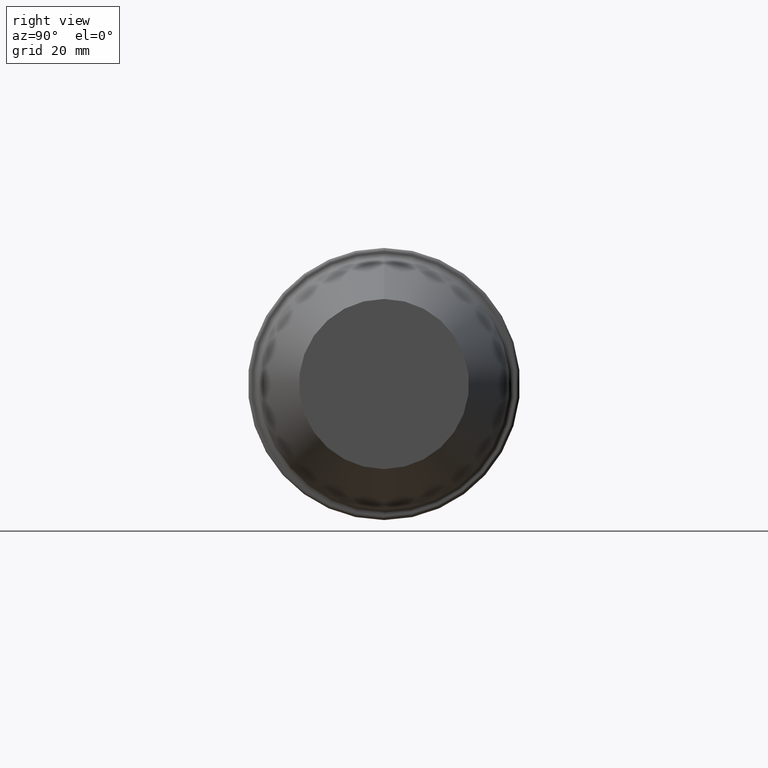
[diagram: clean part render]
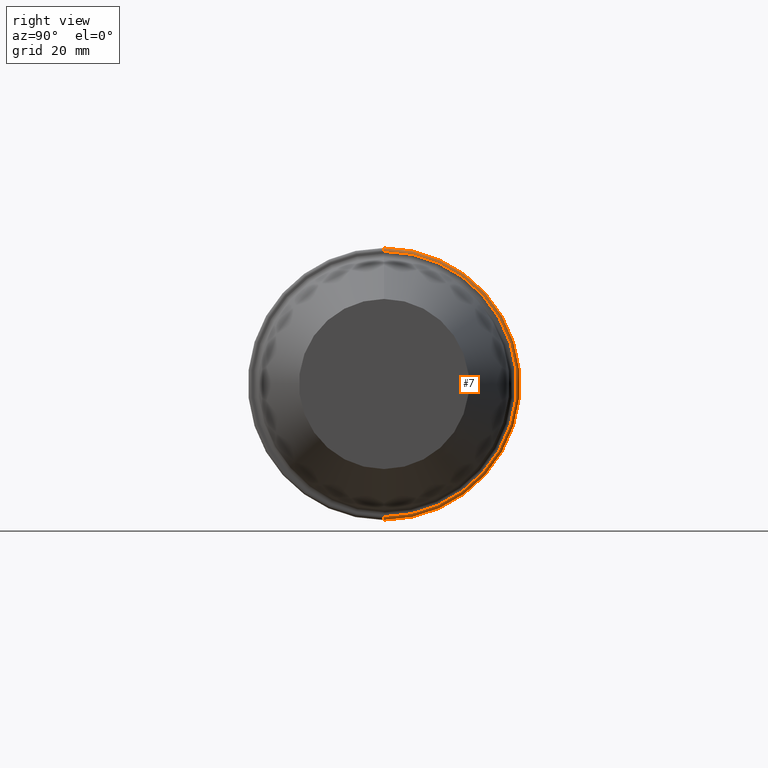
[diagram: same view with one face highlighted and labeled with its STEP entity id]
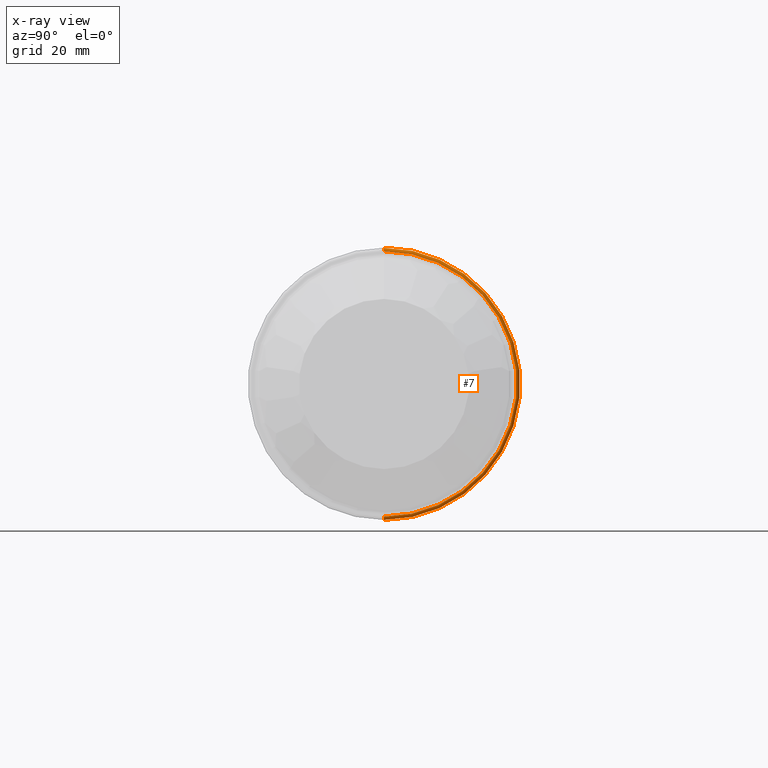
[diagram: x-ray of the same camera — body ghosted, the highlighted face saturated]
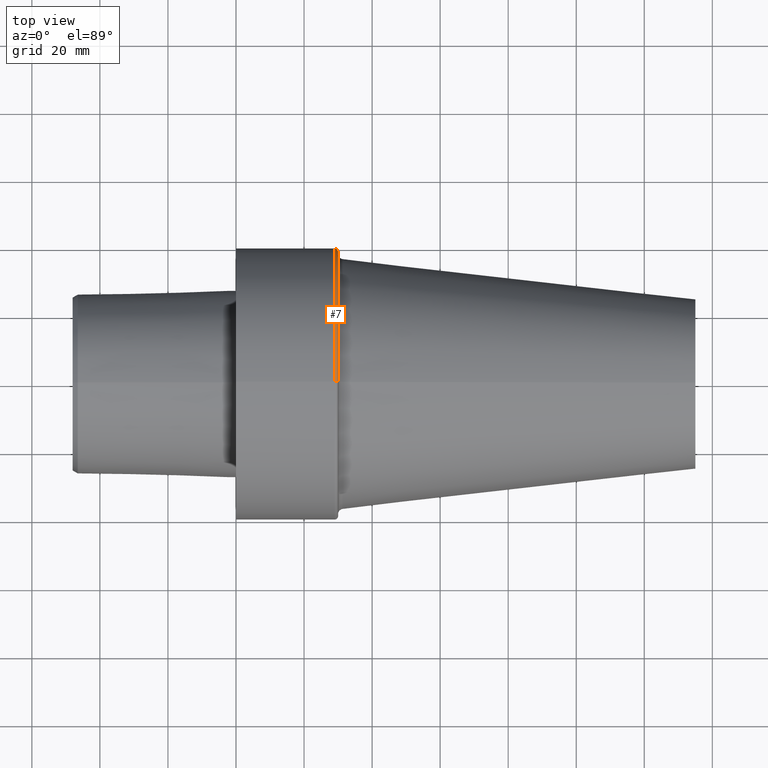
[diagram: same view with one face highlighted and labeled with its STEP entity id]
A machine part, right view. The second image highlights one B-rep face of the part: STEP entity #7.
The next image is the same camera in x-ray: the body ghosted, the highlighted face saturated — about 0% of this face is hidden behind the body in this view.
A second angle (top view) of the same face is appended — the face is thin or edge-on in the first view.
In plain terms, the highlighted toroidal blend (fillet) surface has major radius 38.9925 mm and minor (blend) radius 1 mm.
Its self-contained STEP definition (entity closure, byte-faithful):
#7 = ADVANCED_FACE ( 'NONE', ( #95 ), #18, .T. ) ;
#11 = AXIS2_PLACEMENT_3D ( 'NONE', #84, #246, #418 ) ;
#18 = TOROIDAL_SURFACE ( 'NONE', #11, 38.99249996022764719, 0.9999999989799999156 ) ;
#19 = ORIENTED_EDGE ( 'NONE', *, *, #505, .F. ) ;
#25 = DIRECTION ( 'NONE',  ( 0.000000000000000000, 0.000000000000000000, 1.000000000000000000 ) ) ;
#43 = CARTESIAN_POINT ( 'NONE',  ( 29.99999996940000102, 4.836436366599519633E-15, -38.99249996022764719 ) ) ;
#62 = DIRECTION ( 'NONE',  ( 0.000000000000000000, 0.000000000000000000, 1.000000000000000000 ) ) ;
#76 = CIRCLE ( 'NONE', #386, 0.9999999989799973621 ) ;
#84 = CARTESIAN_POINT ( 'NONE',  ( 28.99999997041999933, 0.000000000000000000, 0.000000000000000000 ) ) ;
#95 = FACE_OUTER_BOUND ( 'NONE', #255, .T. ) ;
#112 = AXIS2_PLACEMENT_3D ( 'NONE', #234, #309, #25 ) ;
#119 = AXIS2_PLACEMENT_3D ( 'NONE', #191, #322, #62 ) ;
#145 = AXIS2_PLACEMENT_3D ( 'NONE', #314, #278, #488 ) ;
#182 = EDGE_CURVE ( 'NONE', #526, #440, #376, .T. ) ;
#191 = CARTESIAN_POINT ( 'NONE',  ( 29.99999996940000102, 0.000000000000000000, 0.000000000000000000 ) ) ;
#210 = CARTESIAN_POINT ( 'NONE',  ( 28.99999997041999933, 4.897668706494425201E-15, -39.99249995920764889 ) ) ;
#222 = EDGE_CURVE ( 'NONE', #526, #373, #468, .T. ) ;
#224 = CARTESIAN_POINT ( 'NONE',  ( 29.99999996940000102, 0.000000000000000000, 38.99249996022764719 ) ) ;
#234 = CARTESIAN_POINT ( 'NONE',  ( 28.99999997041999933, 0.000000000000000000, 0.000000000000000000 ) ) ;
#242 = CARTESIAN_POINT ( 'NONE',  ( 28.99999997041999933, 0.000000000000000000, 39.99249995920764889 ) ) ;
#243 = ORIENTED_EDGE ( 'NONE', *, *, #182, .F. ) ;
#246 = DIRECTION ( 'NONE',  ( -1.000000000000000000, 0.000000000000000000, 0.000000000000000000 ) ) ;
#251 = CARTESIAN_POINT ( 'NONE',  ( 28.99999997041999933, 4.775204026704606177E-15, -38.99249996022764719 ) ) ;
#255 = EDGE_LOOP ( 'NONE', ( #438, #460, #19, #243 ) ) ;
#278 = DIRECTION ( 'NONE',  ( 0.000000000000000000, -1.000000000000000000, 0.000000000000000000 ) ) ;
#309 = DIRECTION ( 'NONE',  ( -1.000000000000000000, 0.000000000000000000, 0.000000000000000000 ) ) ;
#314 = CARTESIAN_POINT ( 'NONE',  ( 28.99999997041999933, 0.000000000000000000, 38.99249996022764719 ) ) ;
#322 = DIRECTION ( 'NONE',  ( -1.000000000000000000, 0.000000000000000000, 0.000000000000000000 ) ) ;
#326 = DIRECTION ( 'NONE',  ( 0.000000000000000000, -1.224646799147358384E-16, 1.000000000000000000 ) ) ;
#373 = VERTEX_POINT ( 'NONE', #43 ) ;
#376 = CIRCLE ( 'NONE', #145, 0.9999999989799973621 ) ;
#386 = AXIS2_PLACEMENT_3D ( 'NONE', #251, #465, #326 ) ;
#398 = EDGE_CURVE ( 'NONE', #373, #419, #76, .T. ) ;
#418 = DIRECTION ( 'NONE',  ( 0.000000000000000000, 0.000000000000000000, 1.000000000000000000 ) ) ;
#419 = VERTEX_POINT ( 'NONE', #210 ) ;
#438 = ORIENTED_EDGE ( 'NONE', *, *, #222, .T. ) ;
#440 = VERTEX_POINT ( 'NONE', #242 ) ;
#460 = ORIENTED_EDGE ( 'NONE', *, *, #398, .T. ) ;
#465 = DIRECTION ( 'NONE',  ( 0.000000000000000000, 1.000000000000000000, 1.224646799147353947E-16 ) ) ;
#468 = CIRCLE ( 'NONE', #119, 38.99249996022764719 ) ;
#488 = DIRECTION ( 'NONE',  ( 0.000000000000000000, 0.000000000000000000, -1.000000000000000000 ) ) ;
#505 = EDGE_CURVE ( 'NONE', #440, #419, #508, .T. ) ;
#508 = CIRCLE ( 'NONE', #112, 39.99249995920764889 ) ;
#526 = VERTEX_POINT ( 'NONE', #224 ) ;